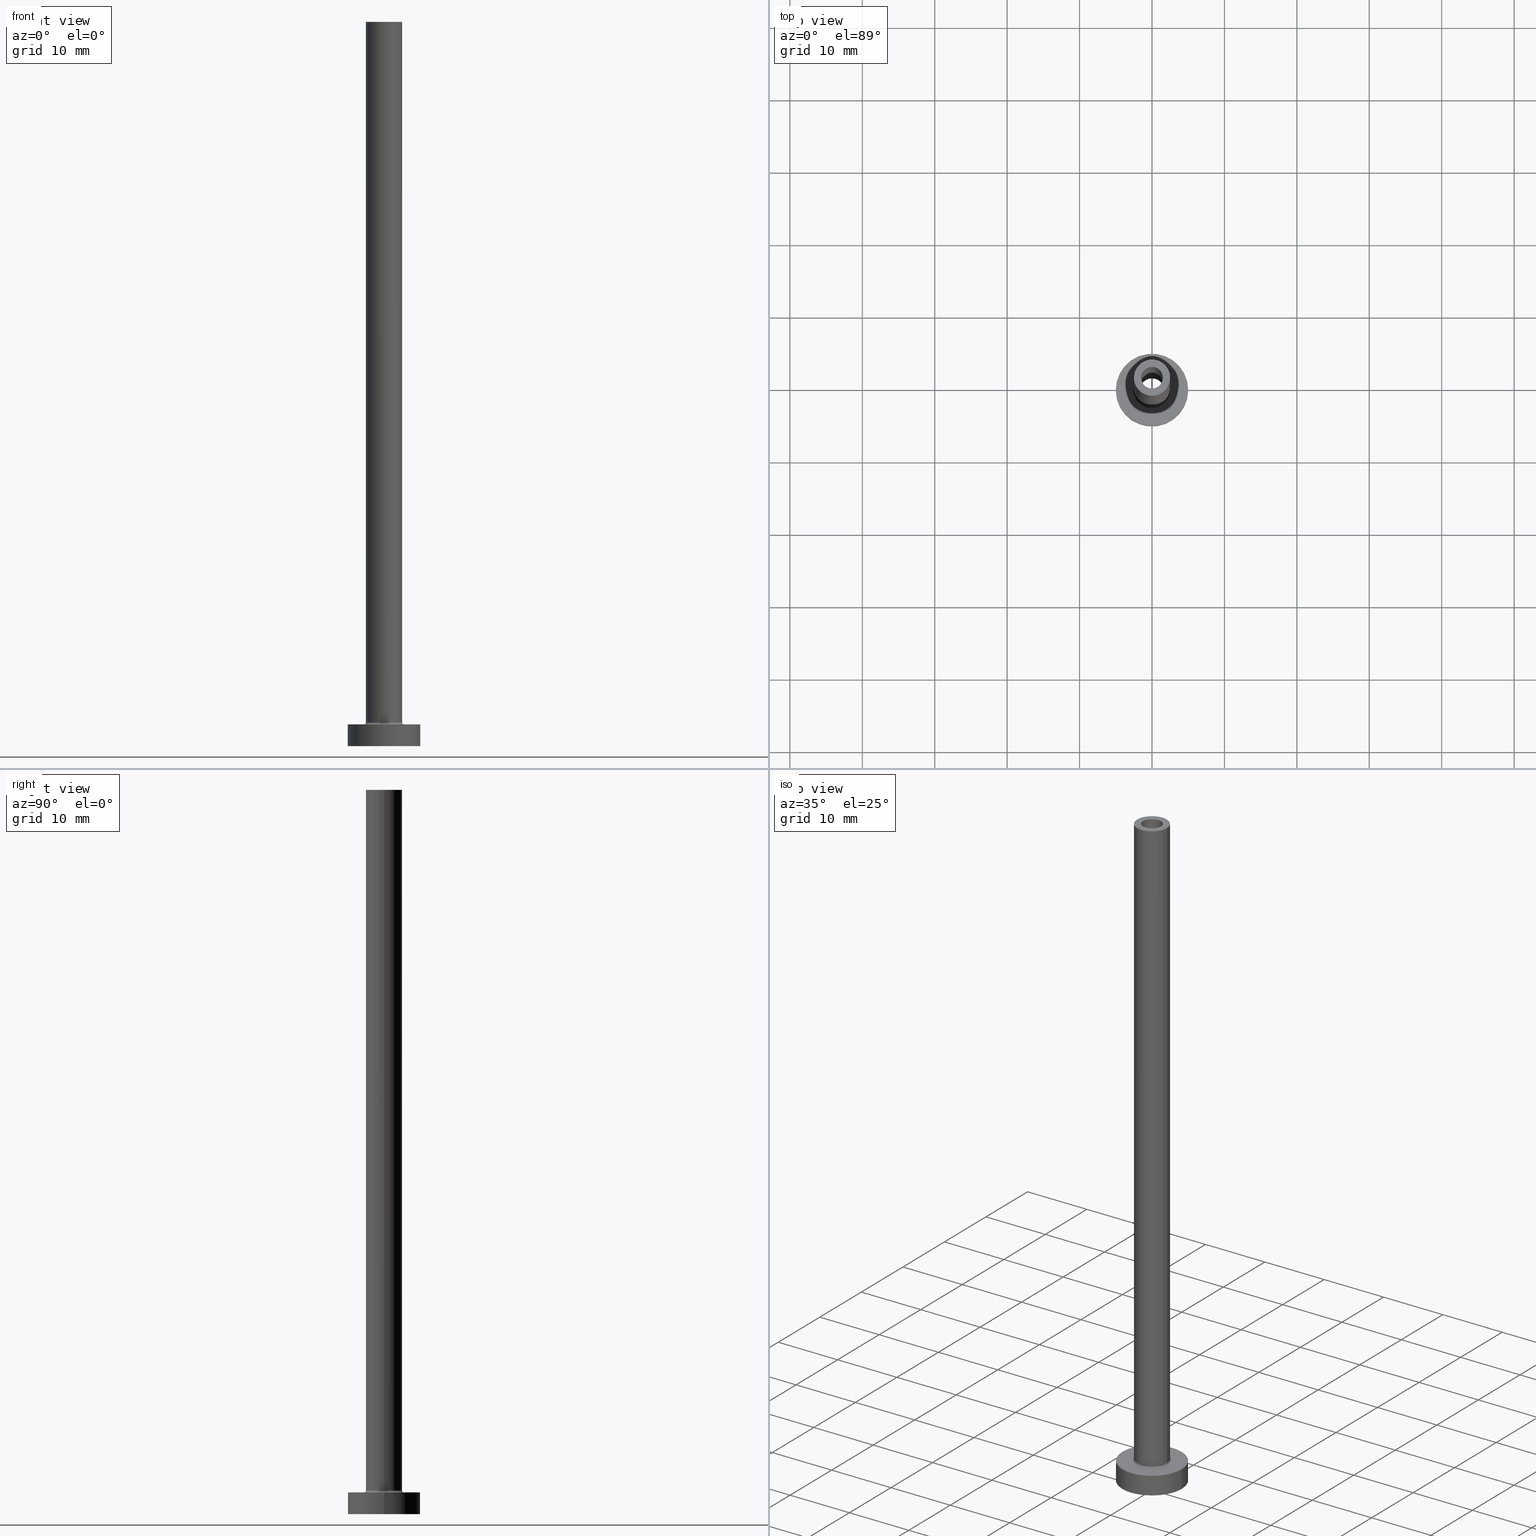
[diagram: canonical four-view strip — front | top / right | iso, engineering-drawing reading convention]
A machine part, canonical four-view strip (front | top / right | iso — engineering-drawing reading convention). The complete STEP part file that produces these views, byte-faithful:
ISO-10303-21;
HEADER;
FILE_DESCRIPTION (( 'STEP AP203' ),
    '1' );
FILE_NAME ('32ad.STEP',
    '2023-02-13T12:48:04',
    ( '' ),
    ( '' ),
    'SwSTEP 2.0',
    'SolidWorks 2019',
    '' );
FILE_SCHEMA (( 'CONFIG_CONTROL_DESIGN' ));
ENDSEC;

DATA;
#1 = CARTESIAN_POINT ( 'NONE',  ( 0.000000000000000000, 0.000000000000000000, 59.66690475583122577 ) ) ;
#2 = DIRECTION ( 'NONE',  ( -1.000000000000000000, 0.000000000000000000, 0.000000000000000000 ) ) ;
#3 = AXIS2_PLACEMENT_3D ( 'NONE', #221, #90, #56 ) ;
#4 = CIRCLE ( 'NONE', #26, 1.500000000000000222 ) ;
#5 = DIRECTION ( 'NONE',  ( -1.000000000000000000, 1.224646799147353207E-16, 0.000000000000000000 ) ) ;
#6 = PERSON_AND_ORGANIZATION ( #291, #55 ) ;
#7 = COORDINATED_UNIVERSAL_TIME_OFFSET ( 1, 0, .AHEAD. ) ;
#8 = CIRCLE ( 'NONE', #279, 1.650000000000000133 ) ;
#9 = PERSON_AND_ORGANIZATION_ROLE ( 'classification_officer' ) ;
#10 = CC_DESIGN_DATE_AND_TIME_ASSIGNMENT ( #328, #150, ( #204 ) ) ;
#11 = PLANE ( 'NONE',  #278 ) ;
#12 = APPROVAL_ROLE ( '' ) ;
#13 = ORIENTED_EDGE ( 'NONE', *, *, #310, .T. ) ;
#14 = VERTEX_POINT ( 'NONE', #15 ) ;
#15 = CARTESIAN_POINT ( 'NONE',  ( 5.000000000000000000, 6.123233995736766282E-16, 3.000000000000000000 ) ) ;
#16 = ORIENTED_EDGE ( 'NONE', *, *, #327, .T. ) ;
#17 = MECHANICAL_CONTEXT ( 'NONE', #268, 'mechanical' ) ;
#18 = ORIENTED_EDGE ( 'NONE', *, *, #51, .F. ) ;
#19 = VERTEX_POINT ( 'NONE', #298 ) ;
#20 = EDGE_CURVE ( 'NONE', #156, #366, #137, .T. ) ;
#21 = LOCAL_TIME ( 13, 48, 4.000000000000000000, #40 ) ;
#22 = DIRECTION ( 'NONE',  ( 0.000000000000000000, 0.000000000000000000, -1.000000000000000000 ) ) ;
#23 = PLANE ( 'NONE',  #414 ) ;
#24 = VERTEX_POINT ( 'NONE', #162 ) ;
#25 = CARTESIAN_POINT ( 'NONE',  ( 5.000000000000000000, 6.123233995736766282E-16, 3.000000000000000000 ) ) ;
#26 = AXIS2_PLACEMENT_3D ( 'NONE', #65, #257, #217 ) ;
#27 = FACE_OUTER_BOUND ( 'NONE', #388, .T. ) ;
#28 = CARTESIAN_POINT ( 'NONE',  ( 0.000000000000000000, 0.000000000000000000, 3.000000000000000000 ) ) ;
#29 = CARTESIAN_POINT ( 'NONE',  ( 0.000000000000000000, 0.000000000000000000, 3.299999999999997158 ) ) ;
#30 = CARTESIAN_POINT ( 'NONE',  ( 0.000000000000000000, 0.000000000000000000, 3.000000000000000000 ) ) ;
#31 = DIRECTION ( 'NONE',  ( -1.000000000000000000, 0.000000000000000000, 0.000000000000000000 ) ) ;
#32 = DIRECTION ( 'NONE',  ( -0.000000000000000000, -0.000000000000000000, -1.000000000000000000 ) ) ;
#33 = AXIS2_PLACEMENT_3D ( 'NONE', #402, #115, #267 ) ;
#34 = CARTESIAN_POINT ( 'NONE',  ( 0.000000000000000000, 0.000000000000000000, 100.0000000000000000 ) ) ;
#35 = CIRCLE ( 'NONE', #158, 0.2999999999999999334 ) ;
#36 = AXIS2_PLACEMENT_3D ( 'NONE', #200, #171, #277 ) ;
#37 = AXIS2_PLACEMENT_3D ( 'NONE', #30, #285, #31 ) ;
#38 = CARTESIAN_POINT ( 'NONE',  ( 0.000000000000000000, 0.000000000000000000, 100.0000000000000000 ) ) ;
#39 = CARTESIAN_POINT ( 'NONE',  ( 0.000000000000000000, 0.000000000000000000, 100.0000000000000000 ) ) ;
#40 = COORDINATED_UNIVERSAL_TIME_OFFSET ( 1, 0, .AHEAD. ) ;
#41 = EDGE_CURVE ( 'NONE', #223, #19, #202, .T. ) ;
#42 = CARTESIAN_POINT ( 'NONE',  ( 0.000000000000000000, 0.000000000000000000, 3.000000000000000000 ) ) ;
#43 = DIRECTION ( 'NONE',  ( 0.000000000000000000, 0.000000000000000000, -1.000000000000000000 ) ) ;
#44 = EDGE_LOOP ( 'NONE', ( #197, #18 ) ) ;
#45 = EDGE_LOOP ( 'NONE', ( #433, #452, #272, #184 ) ) ;
#46 = DATE_AND_TIME ( #117, #270 ) ;
#47 = AXIS2_PLACEMENT_3D ( 'NONE', #347, #350, #138 ) ;
#48 = ORIENTED_EDGE ( 'NONE', *, *, #76, .T. ) ;
#49 = VERTEX_POINT ( 'NONE', #192 ) ;
#50 = CARTESIAN_POINT ( 'NONE',  ( 0.000000000000000000, 0.000000000000000000, 0.000000000000000000 ) ) ;
#51 = EDGE_CURVE ( 'NONE', #19, #223, #442, .T. ) ;
#52 = EDGE_LOOP ( 'NONE', ( #77, #367 ) ) ;
#53 = ORIENTED_EDGE ( 'NONE', *, *, #178, .T. ) ;
#54 = DIRECTION ( 'NONE',  ( 0.000000000000000000, 0.000000000000000000, -1.000000000000000000 ) ) ;
#55 = ORGANIZATION ( 'NEUR�EN�', 'NEUR�EN�', '' ) ;
#56 = DIRECTION ( 'NONE',  ( 1.000000000000000000, 0.000000000000000000, 0.000000000000000000 ) ) ;
#57 = PLANE ( 'NONE',  #210 ) ;
#58 = CARTESIAN_POINT ( 'NONE',  ( -5.000000000000000000, 0.000000000000000000, 3.000000000000000000 ) ) ;
#59 = CARTESIAN_POINT ( 'NONE',  ( -5.000000000000000000, 0.000000000000000000, 3.000000000000000000 ) ) ;
#60 = CARTESIAN_POINT ( 'NONE',  ( -1.650000000000000133, 0.000000000000000000, 0.000000000000000000 ) ) ;
#61 = CC_DESIGN_SECURITY_CLASSIFICATION ( #204, ( #169 ) ) ;
#62 = DIRECTION ( 'NONE',  ( 1.000000000000000000, 0.000000000000000000, -0.000000000000000000 ) ) ;
#63 = DIRECTION ( 'NONE',  ( 1.000000000000000000, 0.000000000000000000, 0.000000000000000000 ) ) ;
#64 = CC_DESIGN_PERSON_AND_ORGANIZATION_ASSIGNMENT ( #193, #399, ( #177 ) ) ;
#65 = CARTESIAN_POINT ( 'NONE',  ( 0.000000000000000000, 0.000000000000000000, 100.0000000000000000 ) ) ;
#66 = PLANE ( 'NONE',  #195 ) ;
#67 = APPROVAL_PERSON_ORGANIZATION ( #83, #397, #183 ) ;
#68 = FACE_OUTER_BOUND ( 'NONE', #394, .T. ) ;
#69 = DIRECTION ( 'NONE',  ( 0.000000000000000000, 0.000000000000000000, 1.000000000000000000 ) ) ;
#70 = DIRECTION ( 'NONE',  ( -1.000000000000000000, 0.000000000000000000, 0.000000000000000000 ) ) ;
#71 = CIRCLE ( 'NONE', #147, 2.799999999999999822 ) ;
#72 = APPROVAL_PERSON_ORGANIZATION ( #363, #359, #266 ) ;
#73 = DATE_AND_TIME ( #234, #364 ) ;
#74 = DIRECTION ( 'NONE',  ( 0.000000000000000000, 0.000000000000000000, -1.000000000000000000 ) ) ;
#75 = EDGE_LOOP ( 'NONE', ( #406, #355, #428, #225 ) ) ;
#76 = EDGE_CURVE ( 'NONE', #375, #415, #256, .T. ) ;
#77 = ORIENTED_EDGE ( 'NONE', *, *, #317, .F. ) ;
#78 = DIRECTION ( 'NONE',  ( 0.000000000000000000, -1.000000000000000000, 0.000000000000000000 ) ) ;
#79 = PERSON_AND_ORGANIZATION ( #291, #55 ) ;
#80 = DIRECTION ( 'NONE',  ( 1.000000000000000000, 0.000000000000000000, 0.000000000000000000 ) ) ;
#81 = EDGE_LOOP ( 'NONE', ( #87, #82, #325, #153 ) ) ;
#82 = ORIENTED_EDGE ( 'NONE', *, *, #273, .T. ) ;
#83 = PERSON_AND_ORGANIZATION ( #291, #55 ) ;
#84 = ORIENTED_EDGE ( 'NONE', *, *, #212, .F. ) ;
#85 = VERTEX_POINT ( 'NONE', #222 ) ;
#86 = AXIS2_PLACEMENT_3D ( 'NONE', #260, #321, #134 ) ;
#87 = ORIENTED_EDGE ( 'NONE', *, *, #317, .T. ) ;
#88 = APPLICATION_PROTOCOL_DEFINITION ( 'international standard', 'config_control_design', 1994, #268 ) ;
#89 = ORIENTED_EDGE ( 'NONE', *, *, #273, .F. ) ;
#90 = DIRECTION ( 'NONE',  ( 0.000000000000000000, 0.000000000000000000, 1.000000000000000000 ) ) ;
#91 = CARTESIAN_POINT ( 'NONE',  ( 0.000000000000000000, 0.000000000000000000, 59.66690475583122577 ) ) ;
#92 = CIRCLE ( 'NONE', #348, 1.500000000000000222 ) ;
#93 = DIRECTION ( 'NONE',  ( 0.000000000000000000, 0.000000000000000000, 1.000000000000000000 ) ) ;
#94 = ADVANCED_FACE ( 'NONE', ( #108 ), #259, .T. ) ;
#95 = DIRECTION ( 'NONE',  ( 0.000000000000000000, 0.000000000000000000, 1.000000000000000000 ) ) ;
#96 = DIRECTION ( 'NONE',  ( 0.000000000000000000, 0.000000000000000000, 1.000000000000000000 ) ) ;
#97 = DIRECTION ( 'NONE',  ( -1.000000000000000000, 0.000000000000000000, 0.000000000000000000 ) ) ;
#98 = CIRCLE ( 'NONE', #352, 2.500000000000000000 ) ;
#99 = AXIS2_PLACEMENT_3D ( 'NONE', #50, #220, #111 ) ;
#100 = ADVANCED_FACE ( 'NONE', ( #264, #389 ), #11, .F. ) ;
#101 = DIRECTION ( 'NONE',  ( 1.000000000000000000, 0.000000000000000000, 0.000000000000000000 ) ) ;
#102 = FACE_BOUND ( 'NONE', #369, .T. ) ;
#103 = PRODUCT_DEFINITION_SHAPE ( 'NONE', 'NONE',  #136 ) ;
#104 = CARTESIAN_POINT ( 'NONE',  ( -1.650000000000000133, 0.000000000000000000, 55.00000000000000711 ) ) ;
#105 = DIRECTION ( 'NONE',  ( 0.000000000000000000, 0.000000000000000000, -1.000000000000000000 ) ) ;
#106 = ORIENTED_EDGE ( 'NONE', *, *, #208, .F. ) ;
#107 = VERTEX_POINT ( 'NONE', #341 ) ;
#108 = FACE_OUTER_BOUND ( 'NONE', #235, .T. ) ;
#109 = CYLINDRICAL_SURFACE ( 'NONE', #120, 1.650000000000000133 ) ;
#110 = CIRCLE ( 'NONE', #36, 1.650000000000000133 ) ;
#111 = DIRECTION ( 'NONE',  ( 1.000000000000000000, 0.000000000000000000, 0.000000000000000000 ) ) ;
#112 = ORIENTED_EDGE ( 'NONE', *, *, #41, .T. ) ;
#113 = ORIENTED_EDGE ( 'NONE', *, *, #143, .T. ) ;
#114 = APPROVAL_STATUS ( 'not_yet_approved' ) ;
#115 = DIRECTION ( 'NONE',  ( -0.000000000000000000, -0.000000000000000000, -1.000000000000000000 ) ) ;
#116 = DIRECTION ( 'NONE',  ( -0.000000000000000000, -0.000000000000000000, -1.000000000000000000 ) ) ;
#117 = CALENDAR_DATE ( 2023, 13, 2 ) ;
#118 = DIRECTION ( 'NONE',  ( 1.000000000000000000, 0.000000000000000000, 0.000000000000000000 ) ) ;
#119 = DIRECTION ( 'NONE',  ( 1.000000000000000000, 0.000000000000000000, 0.000000000000000000 ) ) ;
#120 = AXIS2_PLACEMENT_3D ( 'NONE', #1, #380, #289 ) ;
#121 = ORIENTED_EDGE ( 'NONE', *, *, #172, .T. ) ;
#122 = CALENDAR_DATE ( 2023, 13, 2 ) ;
#123 = CARTESIAN_POINT ( 'NONE',  ( 0.000000000000000000, 0.000000000000000000, 100.0000000000000000 ) ) ;
#124 = CARTESIAN_POINT ( 'NONE',  ( 0.000000000000000000, 0.000000000000000000, 55.00000000000000711 ) ) ;
#125 = EDGE_CURVE ( 'NONE', #307, #49, #205, .T. ) ;
#126 = CARTESIAN_POINT ( 'NONE',  ( 0.000000000000000000, 0.000000000000000000, 3.000000000000000000 ) ) ;
#127 = CIRCLE ( 'NONE', #86, 5.000000000000000000 ) ;
#128 = DIRECTION ( 'NONE',  ( 0.000000000000000000, 0.000000000000000000, 1.000000000000000000 ) ) ;
#129 = EDGE_CURVE ( 'NONE', #357, #85, #152, .T. ) ;
#130 = DIRECTION ( 'NONE',  ( 1.000000000000000000, 0.000000000000000000, 0.000000000000000000 ) ) ;
#131 = CLOSED_SHELL ( 'NONE', ( #387, #382, #372, #94, #451, #265, #296, #100, #229, #439, #430, #227, #281, #164 ) ) ;
#132 = FACE_OUTER_BOUND ( 'NONE', #412, .T. ) ;
#133 = DIRECTION ( 'NONE',  ( 1.000000000000000000, 0.000000000000000000, 0.000000000000000000 ) ) ;
#134 = DIRECTION ( 'NONE',  ( 1.000000000000000000, 0.000000000000000000, 0.000000000000000000 ) ) ;
#135 = EDGE_CURVE ( 'NONE', #415, #375, #216, .T. ) ;
#136 = PRODUCT_DEFINITION ( 'NEZN�M�', '', #169, #396 ) ;
#137 = CIRCLE ( 'NONE', #443, 2.799999999999999822 ) ;
#138 = DIRECTION ( 'NONE',  ( 1.000000000000000000, 0.000000000000000000, 0.000000000000000000 ) ) ;
#139 = AXIS2_PLACEMENT_3D ( 'NONE', #29, #458, #101 ) ;
#140 = ORIENTED_EDGE ( 'NONE', *, *, #135, .F. ) ;
#141 = APPLICATION_PROTOCOL_DEFINITION ( 'international standard', 'config_control_design', 1994, #290 ) ;
#142 = EDGE_CURVE ( 'NONE', #307, #14, #249, .T. ) ;
#143 = EDGE_CURVE ( 'NONE', #107, #156, #35, .T. ) ;
#144 = ORIENTED_EDGE ( 'NONE', *, *, #142, .F. ) ;
#145 = APPROVAL_STATUS ( 'not_yet_approved' ) ;
#146 = ORIENTED_EDGE ( 'NONE', *, *, #345, .F. ) ;
#147 = AXIS2_PLACEMENT_3D ( 'NONE', #28, #198, #63 ) ;
#148 = AXIS2_PLACEMENT_3D ( 'NONE', #427, #311, #133 ) ;
#149 = EDGE_LOOP ( 'NONE', ( #89, #121, #53, #112 ) ) ;
#150 = DATE_TIME_ROLE ( 'classification_date' ) ;
#151 = ORIENTED_EDGE ( 'NONE', *, *, #345, .T. ) ;
#152 = LINE ( 'NONE', #187, #319 ) ;
#153 = ORIENTED_EDGE ( 'NONE', *, *, #178, .F. ) ;
#154 = ORIENTED_EDGE ( 'NONE', *, *, #338, .T. ) ;
#155 = ORIENTED_EDGE ( 'NONE', *, *, #135, .T. ) ;
#156 = VERTEX_POINT ( 'NONE', #448 ) ;
#157 = APPROVAL_STATUS ( 'not_yet_approved' ) ;
#158 = AXIS2_PLACEMENT_3D ( 'NONE', #447, #78, #170 ) ;
#159 = CIRCLE ( 'NONE', #419, 1.500000000000000222 ) ;
#160 = ORIENTED_EDGE ( 'NONE', *, *, #310, .F. ) ;
#161 = CC_DESIGN_APPROVAL ( #397, ( #136 ) ) ;
#162 = CARTESIAN_POINT ( 'NONE',  ( 5.000000000000000000, 6.123233995736766282E-16, 0.000000000000000000 ) ) ;
#163 = DIRECTION ( 'NONE',  ( -1.000000000000000000, 0.000000000000000000, 0.000000000000000000 ) ) ;
#164 = ADVANCED_FACE ( 'NONE', ( #314 ), #286, .F. ) ;
#165 = CARTESIAN_POINT ( 'NONE',  ( 1.500000000000000222, 1.836970198721029934E-16, 55.00000000000000711 ) ) ;
#166 = PRODUCT_RELATED_PRODUCT_CATEGORY ( 'detail', '', ( #177 ) ) ;
#167 = VECTOR ( 'NONE', #168, 1000.000000000000000 ) ;
#168 = DIRECTION ( 'NONE',  ( -0.000000000000000000, -0.000000000000000000, -1.000000000000000000 ) ) ;
#169 = PRODUCT_DEFINITION_FORMATION_WITH_SPECIFIED_SOURCE ( 'LIBOVOLN�', '', #177, .NOT_KNOWN. ) ;
#170 = DIRECTION ( 'NONE',  ( 0.000000000000000000, 0.000000000000000000, -1.000000000000000000 ) ) ;
#171 = DIRECTION ( 'NONE',  ( 0.000000000000000000, 0.000000000000000000, 1.000000000000000000 ) ) ;
#172 = EDGE_CURVE ( 'NONE', #194, #336, #110, .T. ) ;
#173 = DIRECTION ( 'NONE',  ( -1.000000000000000000, 0.000000000000000000, 0.000000000000000000 ) ) ;
#174 = DIRECTION ( 'NONE',  ( -0.000000000000000000, -0.000000000000000000, -1.000000000000000000 ) ) ;
#175 = FACE_OUTER_BOUND ( 'NONE', #81, .T. ) ;
#176 = CARTESIAN_POINT ( 'NONE',  ( 1.500000000000000222, 1.836970198721029934E-16, 100.0000000000000000 ) ) ;
#177 = PRODUCT ( '32ad', '32ad', '', ( #17 ) ) ;
#178 = EDGE_CURVE ( 'NONE', #336, #223, #346, .T. ) ;
#179 = EDGE_CURVE ( 'NONE', #323, #107, #98, .T. ) ;
#180 = LINE ( 'NONE', #252, #322 ) ;
#181 = DIRECTION ( 'NONE',  ( 1.224646799147353207E-16, 1.000000000000000000, -0.000000000000000000 ) ) ;
#182 = DATE_AND_TIME ( #295, #401 ) ;
#183 = APPROVAL_ROLE ( '' ) ;
#184 = ORIENTED_EDGE ( 'NONE', *, *, #129, .F. ) ;
#185 = VERTEX_POINT ( 'NONE', #165 ) ;
#186 = ORIENTED_EDGE ( 'NONE', *, *, #373, .F. ) ;
#187 = CARTESIAN_POINT ( 'NONE',  ( -1.500000000000000222, 0.000000000000000000, 100.0000000000000000 ) ) ;
#188 = CALENDAR_DATE ( 2023, 13, 2 ) ;
#189 = DIRECTION ( 'NONE',  ( 0.000000000000000000, 0.000000000000000000, 1.000000000000000000 ) ) ;
#190 = APPROVAL_PERSON_ORGANIZATION ( #299, #245, #12 ) ;
#191 = APPROVAL_DATE_TIME ( #46, #359 ) ;
#192 = CARTESIAN_POINT ( 'NONE',  ( -5.000000000000000000, 0.000000000000000000, 0.000000000000000000 ) ) ;
#193 = PERSON_AND_ORGANIZATION ( #291, #55 ) ;
#194 = VERTEX_POINT ( 'NONE', #246 ) ;
#195 = AXIS2_PLACEMENT_3D ( 'NONE', #38, #254, #349 ) ;
#196 = CC_DESIGN_PERSON_AND_ORGANIZATION_ASSIGNMENT ( #6, #441, ( #169 ) ) ;
#197 = ORIENTED_EDGE ( 'NONE', *, *, #41, .F. ) ;
#198 = DIRECTION ( 'NONE',  ( -0.000000000000000000, -0.000000000000000000, -1.000000000000000000 ) ) ;
#199 = ORIENTED_EDGE ( 'NONE', *, *, #76, .F. ) ;
#200 = CARTESIAN_POINT ( 'NONE',  ( 0.000000000000000000, 0.000000000000000000, 55.00000000000000711 ) ) ;
#201 = LINE ( 'NONE', #25, #167 ) ;
#202 = CIRCLE ( 'NONE', #261, 1.650000000000000133 ) ;
#203 = FACE_OUTER_BOUND ( 'NONE', #149, .T. ) ;
#204 = SECURITY_CLASSIFICATION ( '', '', #269 ) ;
#205 = LINE ( 'NONE', #58, #305 ) ;
#206 = CYLINDRICAL_SURFACE ( 'NONE', #242, 1.650000000000000133 ) ;
#207 = DIRECTION ( 'NONE',  ( 1.000000000000000000, 0.000000000000000000, 0.000000000000000000 ) ) ;
#208 = EDGE_CURVE ( 'NONE', #357, #403, #159, .T. ) ;
#209 = DIRECTION ( 'NONE',  ( 0.000000000000000000, 0.000000000000000000, 1.000000000000000000 ) ) ;
#210 = AXIS2_PLACEMENT_3D ( 'NONE', #126, #280, #416 ) ;
#211 = CYLINDRICAL_SURFACE ( 'NONE', #37, 5.000000000000000000 ) ;
#212 = EDGE_CURVE ( 'NONE', #375, #107, #344, .T. ) ;
#213 = FACE_OUTER_BOUND ( 'NONE', #75, .T. ) ;
#214 = ORIENTED_EDGE ( 'NONE', *, *, #125, .F. ) ;
#215 = EDGE_CURVE ( 'NONE', #403, #185, #304, .T. ) ;
#216 = CIRCLE ( 'NONE', #3, 2.500000000000000000 ) ;
#217 = DIRECTION ( 'NONE',  ( 1.000000000000000000, 0.000000000000000000, 0.000000000000000000 ) ) ;
#218 = TOROIDAL_SURFACE ( 'NONE', #139, 2.799999999999999822, 0.2999999999999999889 ) ;
#219 = EDGE_LOOP ( 'NONE', ( #146, #408 ) ) ;
#220 = DIRECTION ( 'NONE',  ( 0.000000000000000000, 0.000000000000000000, 1.000000000000000000 ) ) ;
#221 = CARTESIAN_POINT ( 'NONE',  ( 0.000000000000000000, 0.000000000000000000, 100.0000000000000000 ) ) ;
#222 = CARTESIAN_POINT ( 'NONE',  ( -1.500000000000000222, 0.000000000000000000, 55.00000000000000711 ) ) ;
#223 = VERTEX_POINT ( 'NONE', #60 ) ;
#224 = ORIENTED_EDGE ( 'NONE', *, *, #237, .F. ) ;
#225 = ORIENTED_EDGE ( 'NONE', *, *, #143, .F. ) ;
#226 = COORDINATED_UNIVERSAL_TIME_OFFSET ( 1, 0, .AHEAD. ) ;
#227 = ADVANCED_FACE ( 'NONE', ( #203 ), #206, .F. ) ;
#228 = AXIS2_PLACEMENT_3D ( 'NONE', #395, #32, #2 ) ;
#229 = ADVANCED_FACE ( 'NONE', ( #377 ), #240, .T. ) ;
#230 = ORIENTED_EDGE ( 'NONE', *, *, #20, .T. ) ;
#231 = ADVANCED_BREP_SHAPE_REPRESENTATION ( '32ad', ( #335, #99 ), #381 ) ;
#232 =( NAMED_UNIT ( * ) PLANE_ANGLE_UNIT ( ) SI_UNIT ( $, .RADIAN. ) );
#233 = ORIENTED_EDGE ( 'NONE', *, *, #410, .T. ) ;
#234 = CALENDAR_DATE ( 2023, 13, 2 ) ;
#235 = EDGE_LOOP ( 'NONE', ( #199, #255, #154, #186 ) ) ;
#236 = EDGE_CURVE ( 'NONE', #85, #185, #92, .T. ) ;
#237 = EDGE_CURVE ( 'NONE', #366, #156, #71, .T. ) ;
#238 = ORIENTED_EDGE ( 'NONE', *, *, #373, .T. ) ;
#239 = EDGE_LOOP ( 'NONE', ( #316, #276, #113, #224 ) ) ;
#240 = CYLINDRICAL_SURFACE ( 'NONE', #284, 2.500000000000000000 ) ;
#241 = AXIS2_PLACEMENT_3D ( 'NONE', #42, #189, #365 ) ;
#242 = AXIS2_PLACEMENT_3D ( 'NONE', #91, #417, #163 ) ;
#243 = AXIS2_PLACEMENT_3D ( 'NONE', #460, #69, #288 ) ;
#244 = CARTESIAN_POINT ( 'NONE',  ( 2.500000000000000000, 3.061616997868382648E-16, 100.0000000000000000 ) ) ;
#245 = APPROVAL ( #145, 'NEUR�EN�' ) ;
#246 = CARTESIAN_POINT ( 'NONE',  ( 1.650000000000000133, 2.020667218593133001E-16, 55.00000000000000711 ) ) ;
#247 = DIRECTION ( 'NONE',  ( 0.000000000000000000, 0.000000000000000000, 1.000000000000000000 ) ) ;
#248 = CARTESIAN_POINT ( 'NONE',  ( 1.500000000000000222, 1.836970198721029934E-16, 100.0000000000000000 ) ) ;
#249 = CIRCLE ( 'NONE', #241, 5.000000000000000000 ) ;
#250 = LOCAL_TIME ( 13, 48, 4.000000000000000000, #301 ) ;
#251 = CARTESIAN_POINT ( 'NONE',  ( 0.000000000000000000, 0.000000000000000000, 3.000000000000000000 ) ) ;
#252 = CARTESIAN_POINT ( 'NONE',  ( -2.500000000000000000, 0.000000000000000000, 100.0000000000000000 ) ) ;
#253 = CC_DESIGN_PERSON_AND_ORGANIZATION_ASSIGNMENT ( #79, #9, ( #204 ) ) ;
#254 = DIRECTION ( 'NONE',  ( 0.000000000000000000, 0.000000000000000000, 1.000000000000000000 ) ) ;
#255 = ORIENTED_EDGE ( 'NONE', *, *, #212, .T. ) ;
#256 = CIRCLE ( 'NONE', #294, 2.500000000000000000 ) ;
#257 = DIRECTION ( 'NONE',  ( 0.000000000000000000, 0.000000000000000000, 1.000000000000000000 ) ) ;
#258 = CARTESIAN_POINT ( 'NONE',  ( 0.000000000000000000, 0.000000000000000000, 3.299999999999997158 ) ) ;
#259 = CYLINDRICAL_SURFACE ( 'NONE', #228, 2.500000000000000000 ) ;
#260 = CARTESIAN_POINT ( 'NONE',  ( 0.000000000000000000, 0.000000000000000000, 3.000000000000000000 ) ) ;
#261 = AXIS2_PLACEMENT_3D ( 'NONE', #404, #275, #118 ) ;
#262 = COORDINATED_UNIVERSAL_TIME_OFFSET ( 1, 0, .AHEAD. ) ;
#263 = EDGE_LOOP ( 'NONE', ( #332, #444 ) ) ;
#264 = FACE_BOUND ( 'NONE', #44, .T. ) ;
#265 = ADVANCED_FACE ( 'NONE', ( #27 ), #342, .T. ) ;
#266 = APPROVAL_ROLE ( '' ) ;
#267 = DIRECTION ( 'NONE',  ( 1.000000000000000000, 0.000000000000000000, 0.000000000000000000 ) ) ;
#268 = APPLICATION_CONTEXT ( 'configuration controlled 3d designs of mechanical parts and assemblies' ) ;
#269 = SECURITY_CLASSIFICATION_LEVEL ( 'unclassified' ) ;
#270 = LOCAL_TIME ( 13, 48, 4.000000000000000000, #226 ) ;
#271 = AXIS2_PLACEMENT_3D ( 'NONE', #383, #181, #5 ) ;
#272 = ORIENTED_EDGE ( 'NONE', *, *, #236, .F. ) ;
#273 = EDGE_CURVE ( 'NONE', #194, #19, #376, .T. ) ;
#274 = CARTESIAN_POINT ( 'NONE',  ( 1.650000000000000133, 2.020667218593133001E-16, 59.66690475583122577 ) ) ;
#275 = DIRECTION ( 'NONE',  ( -0.000000000000000000, -0.000000000000000000, -1.000000000000000000 ) ) ;
#276 = ORIENTED_EDGE ( 'NONE', *, *, #338, .F. ) ;
#277 = DIRECTION ( 'NONE',  ( 1.000000000000000000, 0.000000000000000000, 0.000000000000000000 ) ) ;
#278 = AXIS2_PLACEMENT_3D ( 'NONE', #438, #247, #62 ) ;
#279 = AXIS2_PLACEMENT_3D ( 'NONE', #308, #128, #282 ) ;
#280 = DIRECTION ( 'NONE',  ( 0.000000000000000000, 0.000000000000000000, 1.000000000000000000 ) ) ;
#281 = ADVANCED_FACE ( 'NONE', ( #413, #334 ), #23, .F. ) ;
#282 = DIRECTION ( 'NONE',  ( 1.000000000000000000, 0.000000000000000000, 0.000000000000000000 ) ) ;
#283 = CARTESIAN_POINT ( 'NONE',  ( 0.000000000000000000, 0.000000000000000000, 100.0000000000000000 ) ) ;
#284 = AXIS2_PLACEMENT_3D ( 'NONE', #123, #370, #97 ) ;
#285 = DIRECTION ( 'NONE',  ( -0.000000000000000000, -0.000000000000000000, -1.000000000000000000 ) ) ;
#286 = CYLINDRICAL_SURFACE ( 'NONE', #445, 1.500000000000000222 ) ;
#287 = CC_DESIGN_DATE_AND_TIME_ASSIGNMENT ( #73, #368, ( #136 ) ) ;
#288 = DIRECTION ( 'NONE',  ( 1.000000000000000000, 0.000000000000000000, 0.000000000000000000 ) ) ;
#289 = DIRECTION ( 'NONE',  ( -1.000000000000000000, 0.000000000000000000, 0.000000000000000000 ) ) ;
#290 = APPLICATION_CONTEXT ( 'configuration controlled 3d designs of mechanical parts and assemblies' ) ;
#291 = PERSON ( 'NEUR�EN�', 'NEUR�EN�', 'NEUR�EN�', ('NEUR�EN�'), ('NEUR�EN�'), ('NEUR�EN�') ) ;
#292 = CYLINDRICAL_SURFACE ( 'NONE', #312, 1.500000000000000222 ) ;
#293 =( NAMED_UNIT ( * ) SI_UNIT ( $, .STERADIAN. ) SOLID_ANGLE_UNIT ( ) );
#294 = AXIS2_PLACEMENT_3D ( 'NONE', #361, #391, #80 ) ;
#295 = CALENDAR_DATE ( 2023, 13, 2 ) ;
#296 = ADVANCED_FACE ( 'NONE', ( #450, #409 ), #57, .T. ) ;
#297 = EDGE_LOOP ( 'NONE', ( #230, #432 ) ) ;
#298 = CARTESIAN_POINT ( 'NONE',  ( 1.650000000000000133, 2.020667218593133001E-16, 0.000000000000000000 ) ) ;
#299 = PERSON_AND_ORGANIZATION ( #291, #55 ) ;
#300 = EDGE_LOOP ( 'NONE', ( #337, #16 ) ) ;
#301 = COORDINATED_UNIVERSAL_TIME_OFFSET ( 1, 0, .AHEAD. ) ;
#302 = VECTOR ( 'NONE', #22, 1000.000000000000000 ) ;
#303 = DIRECTION ( 'NONE',  ( -0.000000000000000000, -0.000000000000000000, -1.000000000000000000 ) ) ;
#304 = LINE ( 'NONE', #248, #371 ) ;
#305 = VECTOR ( 'NONE', #407, 1000.000000000000000 ) ;
#306 = AXIS2_PLACEMENT_3D ( 'NONE', #251, #174, #454 ) ;
#307 = VERTEX_POINT ( 'NONE', #59 ) ;
#308 = CARTESIAN_POINT ( 'NONE',  ( 0.000000000000000000, 0.000000000000000000, 55.00000000000000711 ) ) ;
#309 = CARTESIAN_POINT ( 'NONE',  ( -1.650000000000000133, 0.000000000000000000, 59.66690475583122577 ) ) ;
#310 = EDGE_CURVE ( 'NONE', #14, #24, #201, .T. ) ;
#311 = DIRECTION ( 'NONE',  ( 0.000000000000000000, 0.000000000000000000, 1.000000000000000000 ) ) ;
#312 = AXIS2_PLACEMENT_3D ( 'NONE', #34, #105, #70 ) ;
#313 = CARTESIAN_POINT ( 'NONE',  ( 0.000000000000000000, 0.000000000000000000, 55.00000000000000711 ) ) ;
#314 = FACE_OUTER_BOUND ( 'NONE', #358, .T. ) ;
#315 = DIRECTION ( 'NONE',  ( 1.000000000000000000, 0.000000000000000000, 0.000000000000000000 ) ) ;
#316 = ORIENTED_EDGE ( 'NONE', *, *, #423, .F. ) ;
#317 = EDGE_CURVE ( 'NONE', #336, #194, #8, .T. ) ;
#318 = CARTESIAN_POINT ( 'NONE',  ( -1.500000000000000222, 0.000000000000000000, 100.0000000000000000 ) ) ;
#319 = VECTOR ( 'NONE', #74, 1000.000000000000000 ) ;
#320 = UNCERTAINTY_MEASURE_WITH_UNIT (LENGTH_MEASURE( 1.000000000000000082E-05 ), #398, 'distance_accuracy_value', 'NONE');
#321 = DIRECTION ( 'NONE',  ( 0.000000000000000000, 0.000000000000000000, 1.000000000000000000 ) ) ;
#322 = VECTOR ( 'NONE', #429, 1000.000000000000000 ) ;
#323 = VERTEX_POINT ( 'NONE', #424 ) ;
#324 = APPROVAL_DATE_TIME ( #182, #245 ) ;
#325 = ORIENTED_EDGE ( 'NONE', *, *, #51, .T. ) ;
#326 = APPROVAL_DATE_TIME ( #405, #397 ) ;
#327 = EDGE_CURVE ( 'NONE', #14, #307, #127, .T. ) ;
#328 = DATE_AND_TIME ( #188, #21 ) ;
#329 = CIRCLE ( 'NONE', #354, 2.500000000000000000 ) ;
#330 = SHAPE_DEFINITION_REPRESENTATION ( #103, #231 ) ;
#331 = ORIENTED_EDGE ( 'NONE', *, *, #461, .T. ) ;
#332 = ORIENTED_EDGE ( 'NONE', *, *, #236, .T. ) ;
#333 = CC_DESIGN_APPROVAL ( #359, ( #204 ) ) ;
#334 = FACE_OUTER_BOUND ( 'NONE', #52, .T. ) ;
#335 = MANIFOLD_SOLID_BREP ( 'Odebrat vysunut�m4', #131 ) ;
#336 = VERTEX_POINT ( 'NONE', #104 ) ;
#337 = ORIENTED_EDGE ( 'NONE', *, *, #142, .T. ) ;
#338 = EDGE_CURVE ( 'NONE', #107, #323, #329, .T. ) ;
#339 = DIRECTION ( 'NONE',  ( 0.000000000000000000, 0.000000000000000000, 1.000000000000000000 ) ) ;
#340 = EDGE_CURVE ( 'NONE', #185, #85, #420, .T. ) ;
#341 = CARTESIAN_POINT ( 'NONE',  ( 2.500000000000000000, 3.061616997868382648E-16, 3.299999999999997158 ) ) ;
#342 = CYLINDRICAL_SURFACE ( 'NONE', #306, 5.000000000000000000 ) ;
#343 = AXIS2_PLACEMENT_3D ( 'NONE', #313, #421, #207 ) ;
#344 = LINE ( 'NONE', #244, #434 ) ;
#345 = EDGE_CURVE ( 'NONE', #49, #24, #459, .T. ) ;
#346 = LINE ( 'NONE', #309, #302 ) ;
#347 = CARTESIAN_POINT ( 'NONE',  ( 0.000000000000000000, 0.000000000000000000, 0.000000000000000000 ) ) ;
#348 = AXIS2_PLACEMENT_3D ( 'NONE', #124, #339, #374 ) ;
#349 = DIRECTION ( 'NONE',  ( 1.000000000000000000, 0.000000000000000000, -0.000000000000000000 ) ) ;
#350 = DIRECTION ( 'NONE',  ( 0.000000000000000000, 0.000000000000000000, 1.000000000000000000 ) ) ;
#351 = CARTESIAN_POINT ( 'NONE',  ( 2.500000000000000000, 3.061616997868382648E-16, 100.0000000000000000 ) ) ;
#352 = AXIS2_PLACEMENT_3D ( 'NONE', #457, #95, #130 ) ;
#353 = FACE_OUTER_BOUND ( 'NONE', #239, .T. ) ;
#354 = AXIS2_PLACEMENT_3D ( 'NONE', #258, #209, #315 ) ;
#355 = ORIENTED_EDGE ( 'NONE', *, *, #423, .T. ) ;
#356 = CC_DESIGN_PERSON_AND_ORGANIZATION_ASSIGNMENT ( #360, #431, ( #136 ) ) ;
#357 = VERTEX_POINT ( 'NONE', #318 ) ;
#358 = EDGE_LOOP ( 'NONE', ( #436, #233, #449, #393 ) ) ;
#359 = APPROVAL ( #114, 'NEUR�EN�' ) ;
#360 = PERSON_AND_ORGANIZATION ( #291, #55 ) ;
#361 = CARTESIAN_POINT ( 'NONE',  ( 0.000000000000000000, 0.000000000000000000, 100.0000000000000000 ) ) ;
#362 = ORIENTED_EDGE ( 'NONE', *, *, #410, .F. ) ;
#363 = PERSON_AND_ORGANIZATION ( #291, #55 ) ;
#364 = LOCAL_TIME ( 13, 48, 4.000000000000000000, #7 ) ;
#365 = DIRECTION ( 'NONE',  ( 1.000000000000000000, 0.000000000000000000, 0.000000000000000000 ) ) ;
#366 = VERTEX_POINT ( 'NONE', #386 ) ;
#367 = ORIENTED_EDGE ( 'NONE', *, *, #172, .F. ) ;
#368 = DATE_TIME_ROLE ( 'creation_date' ) ;
#369 = EDGE_LOOP ( 'NONE', ( #106, #362 ) ) ;
#370 = DIRECTION ( 'NONE',  ( -0.000000000000000000, -0.000000000000000000, -1.000000000000000000 ) ) ;
#371 = VECTOR ( 'NONE', #418, 1000.000000000000000 ) ;
#372 = ADVANCED_FACE ( 'NONE', ( #213 ), #218, .F. ) ;
#373 = EDGE_CURVE ( 'NONE', #415, #323, #180, .T. ) ;
#374 = DIRECTION ( 'NONE',  ( 1.000000000000000000, 0.000000000000000000, 0.000000000000000000 ) ) ;
#375 = VERTEX_POINT ( 'NONE', #351 ) ;
#376 = LINE ( 'NONE', #274, #425 ) ;
#377 = FACE_OUTER_BOUND ( 'NONE', #437, .T. ) ;
#378 = CIRCLE ( 'NONE', #271, 0.2999999999999999334 ) ;
#379 = CARTESIAN_POINT ( 'NONE',  ( 0.000000000000000000, 0.000000000000000000, 55.00000000000000711 ) ) ;
#380 = DIRECTION ( 'NONE',  ( 0.000000000000000000, 0.000000000000000000, -1.000000000000000000 ) ) ;
#381 =( GEOMETRIC_REPRESENTATION_CONTEXT ( 3 ) GLOBAL_UNCERTAINTY_ASSIGNED_CONTEXT ( ( #320 ) ) GLOBAL_UNIT_ASSIGNED_CONTEXT ( ( #398, #232, #293 ) ) REPRESENTATION_CONTEXT ( 'NONE', 'WORKASPACE' ) );
#382 = ADVANCED_FACE ( 'NONE', ( #175 ), #109, .F. ) ;
#383 = CARTESIAN_POINT ( 'NONE',  ( -2.799999999999999822, 3.429011037612588783E-16, 3.299999999999997158 ) ) ;
#384 = FACE_OUTER_BOUND ( 'NONE', #45, .T. ) ;
#385 = ORIENTED_EDGE ( 'NONE', *, *, #125, .T. ) ;
#386 = CARTESIAN_POINT ( 'NONE',  ( -2.799999999999999822, 3.429011037612589276E-16, 2.999999999999998668 ) ) ;
#387 = ADVANCED_FACE ( 'NONE', ( #384 ), #292, .F. ) ;
#388 = EDGE_LOOP ( 'NONE', ( #160, #144, #385, #151 ) ) ;
#389 = FACE_OUTER_BOUND ( 'NONE', #219, .T. ) ;
#390 = PERSON_AND_ORGANIZATION_ROLE ( 'design_supplier' ) ;
#391 = DIRECTION ( 'NONE',  ( 0.000000000000000000, 0.000000000000000000, 1.000000000000000000 ) ) ;
#392 = ORIENTED_EDGE ( 'NONE', *, *, #327, .F. ) ;
#393 = ORIENTED_EDGE ( 'NONE', *, *, #340, .F. ) ;
#394 = EDGE_LOOP ( 'NONE', ( #155, #48 ) ) ;
#395 = CARTESIAN_POINT ( 'NONE',  ( 0.000000000000000000, 0.000000000000000000, 100.0000000000000000 ) ) ;
#396 = DESIGN_CONTEXT ( 'detailed design', #290, 'design' ) ;
#397 = APPROVAL ( #157, 'NEUR�EN�' ) ;
#398 =( LENGTH_UNIT ( ) NAMED_UNIT ( * ) SI_UNIT ( .MILLI., .METRE. ) );
#399 = PERSON_AND_ORGANIZATION_ROLE ( 'design_owner' ) ;
#400 = ORIENTED_EDGE ( 'NONE', *, *, #179, .T. ) ;
#401 = LOCAL_TIME ( 13, 48, 4.000000000000000000, #262 ) ;
#402 = CARTESIAN_POINT ( 'NONE',  ( 0.000000000000000000, 0.000000000000000000, 0.000000000000000000 ) ) ;
#403 = VERTEX_POINT ( 'NONE', #176 ) ;
#404 = CARTESIAN_POINT ( 'NONE',  ( 0.000000000000000000, 0.000000000000000000, 0.000000000000000000 ) ) ;
#405 = DATE_AND_TIME ( #122, #250 ) ;
#406 = ORIENTED_EDGE ( 'NONE', *, *, #179, .F. ) ;
#407 = DIRECTION ( 'NONE',  ( -0.000000000000000000, -0.000000000000000000, -1.000000000000000000 ) ) ;
#408 = ORIENTED_EDGE ( 'NONE', *, *, #461, .F. ) ;
#409 = FACE_OUTER_BOUND ( 'NONE', #300, .T. ) ;
#410 = EDGE_CURVE ( 'NONE', #403, #357, #4, .T. ) ;
#411 = CC_DESIGN_PERSON_AND_ORGANIZATION_ASSIGNMENT ( #435, #390, ( #169 ) ) ;
#412 = EDGE_LOOP ( 'NONE', ( #392, #13, #331, #214 ) ) ;
#413 = FACE_BOUND ( 'NONE', #263, .T. ) ;
#414 = AXIS2_PLACEMENT_3D ( 'NONE', #379, #93, #456 ) ;
#415 = VERTEX_POINT ( 'NONE', #422 ) ;
#416 = DIRECTION ( 'NONE',  ( 1.000000000000000000, 0.000000000000000000, -0.000000000000000000 ) ) ;
#417 = DIRECTION ( 'NONE',  ( 0.000000000000000000, 0.000000000000000000, -1.000000000000000000 ) ) ;
#418 = DIRECTION ( 'NONE',  ( 0.000000000000000000, 0.000000000000000000, -1.000000000000000000 ) ) ;
#419 = AXIS2_PLACEMENT_3D ( 'NONE', #283, #96, #453 ) ;
#420 = CIRCLE ( 'NONE', #343, 1.500000000000000222 ) ;
#421 = DIRECTION ( 'NONE',  ( 0.000000000000000000, 0.000000000000000000, 1.000000000000000000 ) ) ;
#422 = CARTESIAN_POINT ( 'NONE',  ( -2.500000000000000000, 0.000000000000000000, 100.0000000000000000 ) ) ;
#423 = EDGE_CURVE ( 'NONE', #323, #366, #378, .T. ) ;
#424 = CARTESIAN_POINT ( 'NONE',  ( -2.500000000000000000, 0.000000000000000000, 3.299999999999997158 ) ) ;
#425 = VECTOR ( 'NONE', #54, 1000.000000000000000 ) ;
#426 = CIRCLE ( 'NONE', #47, 5.000000000000000000 ) ;
#427 = CARTESIAN_POINT ( 'NONE',  ( 0.000000000000000000, 0.000000000000000000, 3.299999999999997158 ) ) ;
#428 = ORIENTED_EDGE ( 'NONE', *, *, #20, .F. ) ;
#429 = DIRECTION ( 'NONE',  ( -0.000000000000000000, -0.000000000000000000, -1.000000000000000000 ) ) ;
#430 = ADVANCED_FACE ( 'NONE', ( #353 ), #446, .F. ) ;
#431 = PERSON_AND_ORGANIZATION_ROLE ( 'creator' ) ;
#432 = ORIENTED_EDGE ( 'NONE', *, *, #237, .T. ) ;
#433 = ORIENTED_EDGE ( 'NONE', *, *, #208, .T. ) ;
#434 = VECTOR ( 'NONE', #303, 1000.000000000000000 ) ;
#435 = PERSON_AND_ORGANIZATION ( #291, #55 ) ;
#436 = ORIENTED_EDGE ( 'NONE', *, *, #215, .F. ) ;
#437 = EDGE_LOOP ( 'NONE', ( #84, #140, #238, #400 ) ) ;
#438 = CARTESIAN_POINT ( 'NONE',  ( 0.000000000000000000, 0.000000000000000000, 0.000000000000000000 ) ) ;
#439 = ADVANCED_FACE ( 'NONE', ( #102, #68 ), #66, .T. ) ;
#440 = CARTESIAN_POINT ( 'NONE',  ( 0.000000000000000000, 0.000000000000000000, 3.000000000000000000 ) ) ;
#441 = PERSON_AND_ORGANIZATION_ROLE ( 'creator' ) ;
#442 = CIRCLE ( 'NONE', #33, 1.650000000000000133 ) ;
#443 = AXIS2_PLACEMENT_3D ( 'NONE', #440, #116, #119 ) ;
#444 = ORIENTED_EDGE ( 'NONE', *, *, #340, .T. ) ;
#445 = AXIS2_PLACEMENT_3D ( 'NONE', #39, #43, #173 ) ;
#446 = TOROIDAL_SURFACE ( 'NONE', #148, 2.799999999999999822, 0.2999999999999999889 ) ;
#447 = CARTESIAN_POINT ( 'NONE',  ( 2.799999999999999822, 0.000000000000000000, 3.299999999999997158 ) ) ;
#448 = CARTESIAN_POINT ( 'NONE',  ( 2.799999999999999822, 0.000000000000000000, 2.999999999999998668 ) ) ;
#449 = ORIENTED_EDGE ( 'NONE', *, *, #129, .T. ) ;
#450 = FACE_BOUND ( 'NONE', #297, .T. ) ;
#451 = ADVANCED_FACE ( 'NONE', ( #132 ), #211, .T. ) ;
#452 = ORIENTED_EDGE ( 'NONE', *, *, #215, .T. ) ;
#453 = DIRECTION ( 'NONE',  ( 1.000000000000000000, 0.000000000000000000, 0.000000000000000000 ) ) ;
#454 = DIRECTION ( 'NONE',  ( -1.000000000000000000, 0.000000000000000000, 0.000000000000000000 ) ) ;
#455 = CC_DESIGN_APPROVAL ( #245, ( #169 ) ) ;
#456 = DIRECTION ( 'NONE',  ( 1.000000000000000000, 0.000000000000000000, -0.000000000000000000 ) ) ;
#457 = CARTESIAN_POINT ( 'NONE',  ( 0.000000000000000000, 0.000000000000000000, 3.299999999999997158 ) ) ;
#458 = DIRECTION ( 'NONE',  ( 0.000000000000000000, 0.000000000000000000, 1.000000000000000000 ) ) ;
#459 = CIRCLE ( 'NONE', #243, 5.000000000000000000 ) ;
#460 = CARTESIAN_POINT ( 'NONE',  ( 0.000000000000000000, 0.000000000000000000, 0.000000000000000000 ) ) ;
#461 = EDGE_CURVE ( 'NONE', #24, #49, #426, .T. ) ;
ENDSEC;
END-ISO-10303-21;
